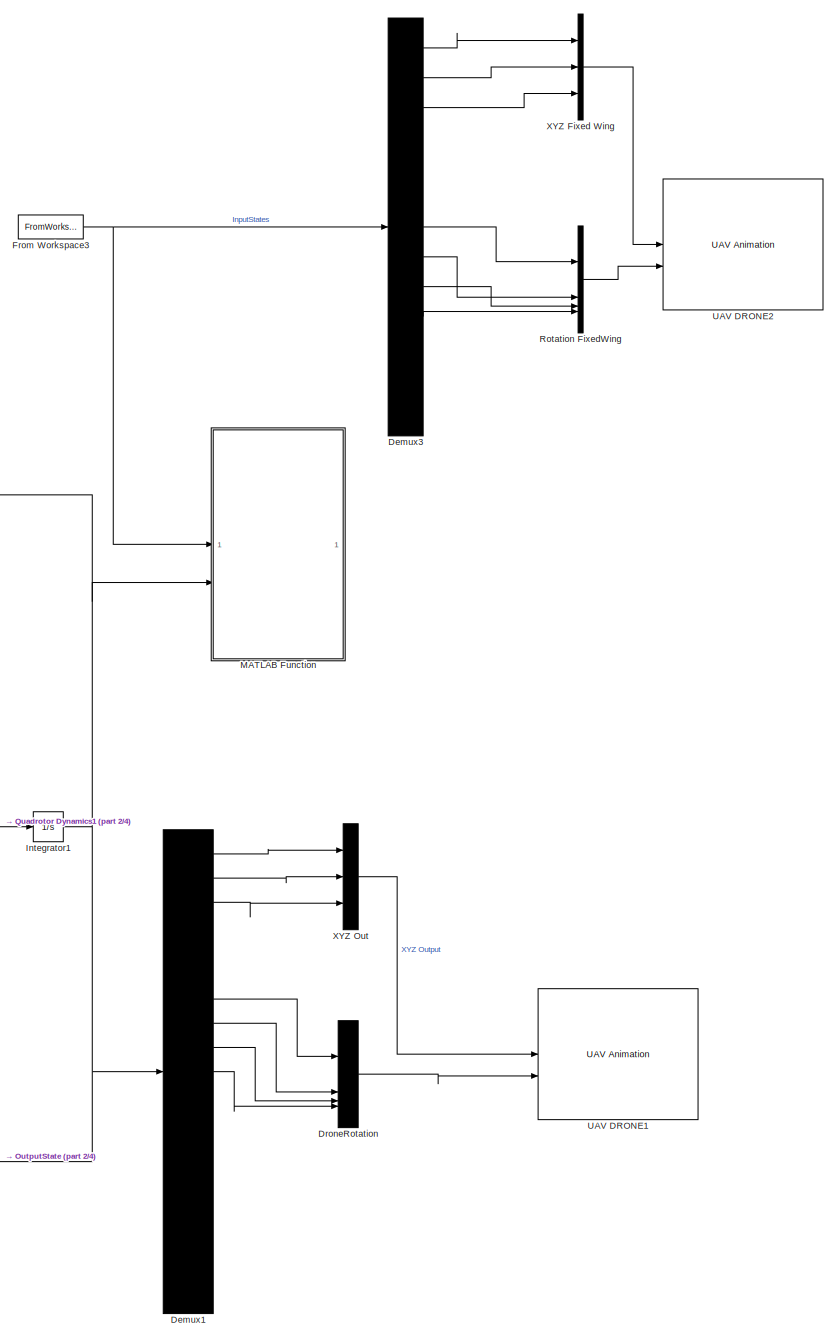
[diagram: root canvas - part 1/4, top right region]
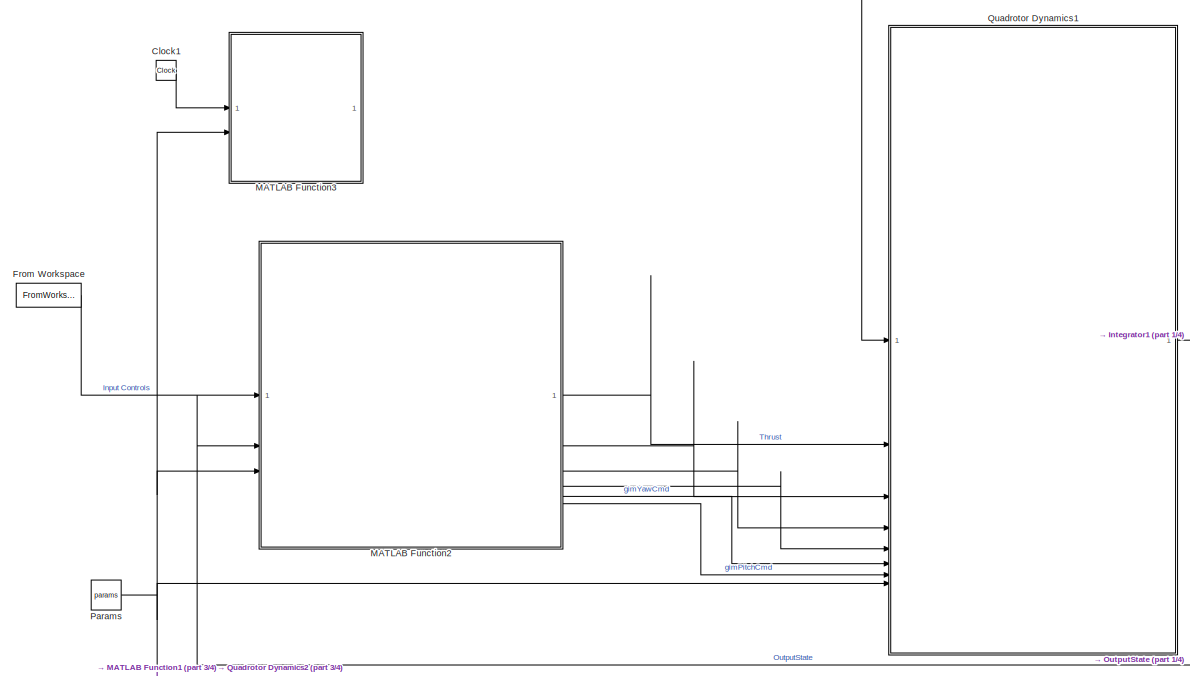
[diagram: root canvas - part 2/4, middle left region]
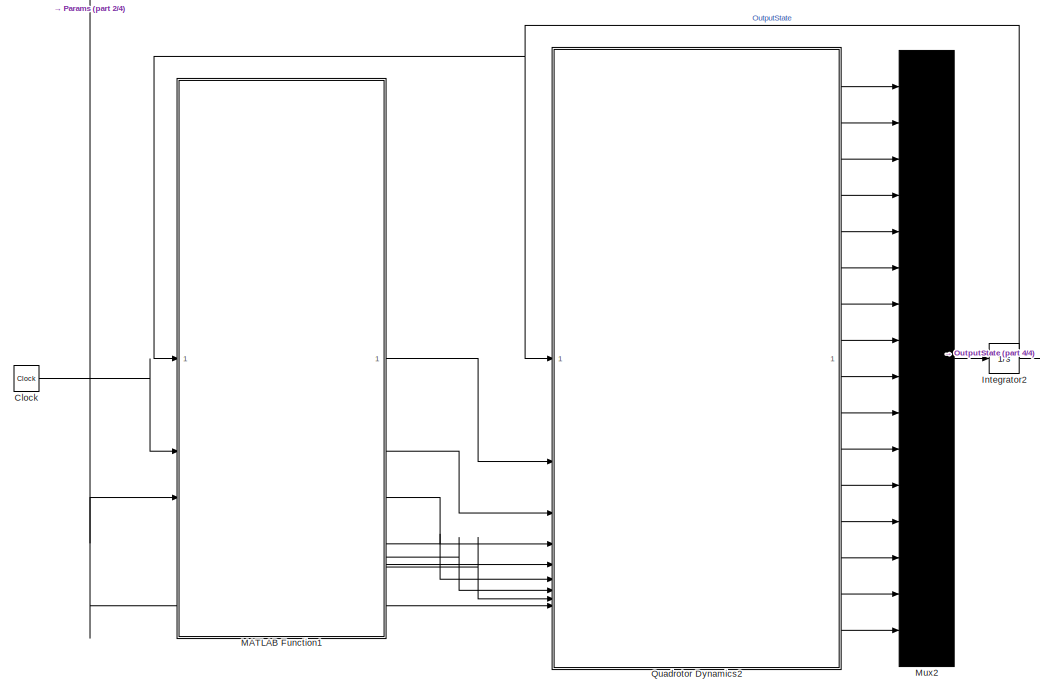
[diagram: root canvas - part 3/4, bottom left region]
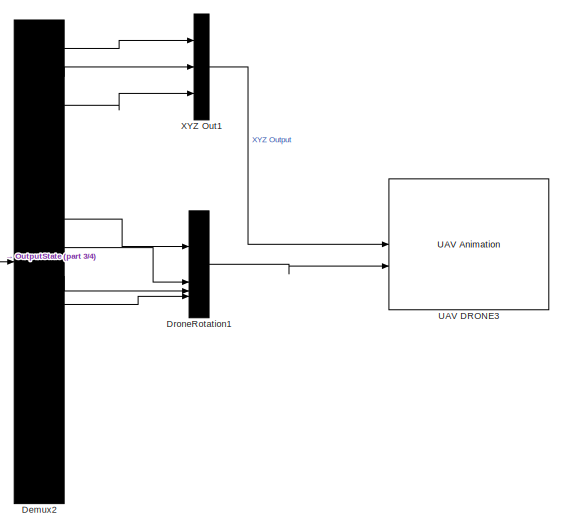
[diagram: root canvas - part 4/4, bottom right region]
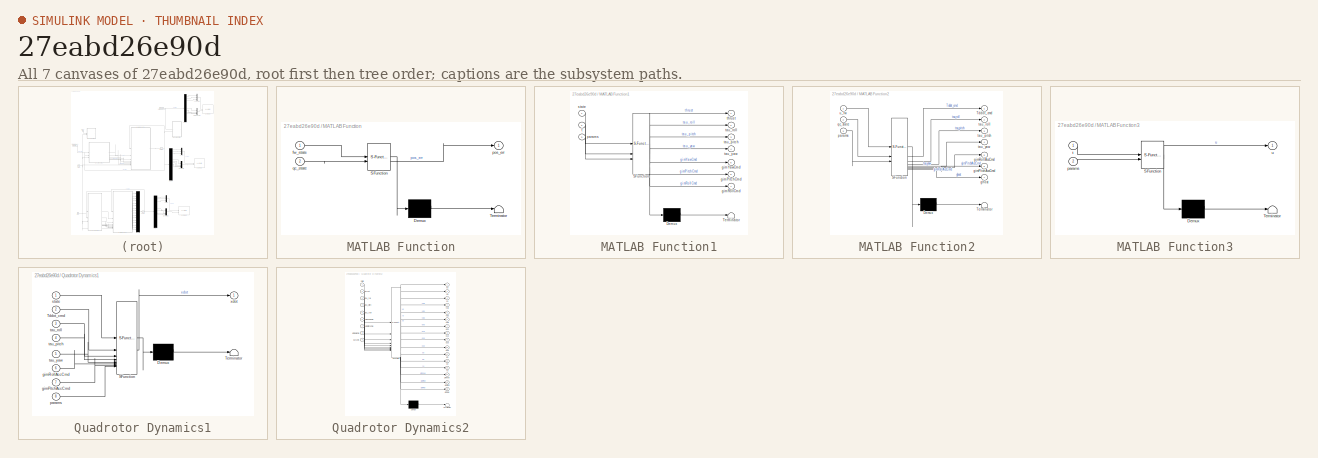
[diagram: thumbnail index - all 7 canvases of the model, root first then tree order]
MODEL slx_27eabd26e90d
KIND model
CONFIG AbsTol = auto
CONFIG EnableMultiTasking = off
CONFIG FixedStep = 0.001
CONFIG MaxStep = auto
CONFIG MinStep = auto
CONFIG RelTol = 1e-3
CONFIG SampleTimeConstraint = Unconstrained
CONFIG SolverName = ode1
CONFIG StartTime = 0.0
CONFIG StopTime = 10
BLOCK [Clock] Clock
  Commented = on
  Decimation = 1
BLOCK [Clock] Clock1
  Decimation = 1
BLOCK [Demux] Demux1
  DisplayOption = none
  Outputs = 19
BLOCK [Demux] Demux2
  Commented = on
  DisplayOption = none
  Outputs = 16
BLOCK [Demux] Demux3
  DisplayOption = none
  Outputs = 13
BLOCK [Mux] DroneRotation
  DisplayOption = signals
BLOCK [Mux] DroneRotation1
  Commented = on
  DisplayOption = signals
BLOCK [FromWorkspace] From Workspace
  SampleTime = params.dt
  VariableName = FW_Controls
BLOCK [FromWorkspace] From Workspace3
  SampleTime = params.dt
  VariableName = FW_States
BLOCK [Integrator] Integrator1
  InitialCondition = initial_qc_state
BLOCK [Integrator] Integrator2
  Commented = on
  InitialCondition = initial_qc_state
BLOCK [SubSystem] MATLAB Function
  ErrorFcn = Stateflow.Translate.translate
  PermitHierarchicalResolution = ExplicitOnly
  SFBlockType = MATLAB Function
  TreatAsAtomicUnit = on
BLOCK [Demux] MATLAB Function/ Demux 
  Outputs = 1
BLOCK [S-Function] MATLAB Function/ SFunction 
  EnableBusSupport = on
  FunctionName = sf_sfun
  PortCounts = [2 2]
  SFcnIsStateOwnerBlock = off
  SFunctionDeploymentMode = off
  Tag = Stateflow S-Function 1
BLOCK [Terminator] MATLAB Function/ Terminator 
BLOCK [Inport] MATLAB Function/fw_state
BLOCK [Outport] MATLAB Function/pos_err
BLOCK [Inport] MATLAB Function/qc_state
  Port = 2
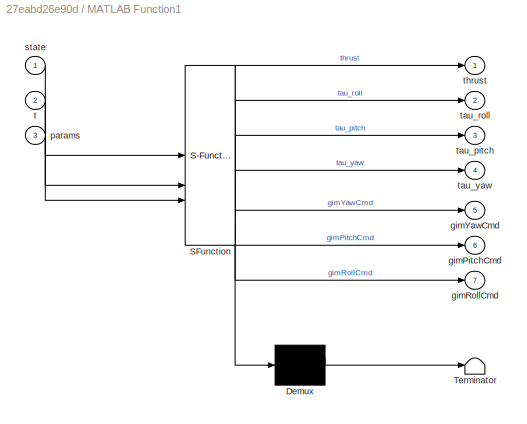
BLOCK [SubSystem] MATLAB Function1
  Commented = on
  ErrorFcn = Stateflow.Translate.translate
  PermitHierarchicalResolution = ExplicitOnly
  SFBlockType = MATLAB Function
  TreatAsAtomicUnit = on
BLOCK [Demux] MATLAB Function1/ Demux 
  Outputs = 1
BLOCK [S-Function] MATLAB Function1/ SFunction 
  EnableBusSupport = on
  FunctionName = sf_sfun
  PortCounts = [3 8]
  SFcnIsStateOwnerBlock = off
  SFunctionDeploymentMode = off
  Tag = Stateflow S-Function 4
BLOCK [Terminator] MATLAB Function1/ Terminator 
BLOCK [Outport] MATLAB Function1/gimPitchCmd
  Port = 6
BLOCK [Outport] MATLAB Function1/gimRollCmd
  Port = 7
BLOCK [Outport] MATLAB Function1/gimYawCmd
  Port = 5
BLOCK [Inport] MATLAB Function1/params
  Port = 3
BLOCK [Inport] MATLAB Function1/state
BLOCK [Inport] MATLAB Function1/t
  Port = 2
BLOCK [Outport] MATLAB Function1/tau_pitch
  Port = 3
BLOCK [Outport] MATLAB Function1/tau_roll
  Port = 2
BLOCK [Outport] MATLAB Function1/tau_yaw
  Port = 4
BLOCK [Outport] MATLAB Function1/thrust
BLOCK [SubSystem] MATLAB Function2
  ErrorFcn = Stateflow.Translate.translate
  PermitHierarchicalResolution = ExplicitOnly
  SFBlockType = MATLAB Function
  SystemSampleTime = params.dt
  TreatAsAtomicUnit = on
BLOCK [Demux] MATLAB Function2/ Demux 
  Outputs = 1
BLOCK [S-Function] MATLAB Function2/ SFunction 
  EnableBusSupport = on
  FunctionName = sf_sfun
  PortCounts = [3 8]
  SFcnIsStateOwnerBlock = off
  SFunctionDeploymentMode = off
  Tag = Stateflow S-Function 10
BLOCK [Terminator] MATLAB Function2/ Terminator 
BLOCK [Outport] MATLAB Function2/Tddot_cmd
BLOCK [Outport] MATLAB Function2/ghost
  Port = 7
BLOCK [Outport] MATLAB Function2/gimPitchAccCmd
  Port = 6
BLOCK [Outport] MATLAB Function2/gimRollAccCmd
  Port = 5
BLOCK [Inport] MATLAB Function2/params
  Port = 3
BLOCK [Inport] MATLAB Function2/qc_state
  Port = 2
BLOCK [Outport] MATLAB Function2/tau_pitch
  Port = 3
BLOCK [Outport] MATLAB Function2/tau_roll
  Port = 2
BLOCK [Outport] MATLAB Function2/tau_yaw
  Port = 4
BLOCK [Inport] MATLAB Function2/u_fw
BLOCK [SubSystem] MATLAB Function3
  ErrorFcn = Stateflow.Translate.translate
  PermitHierarchicalResolution = ExplicitOnly
  SFBlockType = MATLAB Function
  TreatAsAtomicUnit = on
BLOCK [Demux] MATLAB Function3/ Demux 
  Outputs = 1
BLOCK [S-Function] MATLAB Function3/ SFunction 
  EnableBusSupport = on
  FunctionName = sf_sfun
  PortCounts = [2 2]
  SFcnIsStateOwnerBlock = off
  SFunctionDeploymentMode = off
  Tag = Stateflow S-Function 5
BLOCK [Terminator] MATLAB Function3/ Terminator 
BLOCK [Inport] MATLAB Function3/params
  Port = 2
BLOCK [Inport] MATLAB Function3/t
BLOCK [Outport] MATLAB Function3/u
BLOCK [Mux] Mux2
  Commented = on
  DisplayOption = signals
  Inputs = 16
BLOCK [Constant] Params
  OutDataTypeStr = Bus: paramsBus
  Value = params
BLOCK [SubSystem] Quadrotor Dynamics1
  ErrorFcn = Stateflow.Translate.translate
  PermitHierarchicalResolution = ExplicitOnly
  SFBlockType = MATLAB Function
  TreatAsAtomicUnit = on
BLOCK [Demux] Quadrotor Dynamics1/ Demux 
  Outputs = 1
BLOCK [S-Function] Quadrotor Dynamics1/ SFunction 
  EnableBusSupport = on
  FunctionName = sf_sfun
  PortCounts = [8 2]
  SFcnIsStateOwnerBlock = off
  SFunctionDeploymentMode = off
  Tag = Stateflow S-Function 2
BLOCK [Terminator] Quadrotor Dynamics1/ Terminator 
BLOCK [Inport] Quadrotor Dynamics1/Tddot_cmd
  Port = 2
BLOCK [Inport] Quadrotor Dynamics1/gimPitchAccCmd
  Port = 7
BLOCK [Inport] Quadrotor Dynamics1/gimRollAccCmd
  Port = 6
BLOCK [Inport] Quadrotor Dynamics1/params
  Port = 8
BLOCK [Inport] Quadrotor Dynamics1/state
BLOCK [Inport] Quadrotor Dynamics1/tau_pitch
  Port = 4
BLOCK [Inport] Quadrotor Dynamics1/tau_roll
  Port = 3
BLOCK [Inport] Quadrotor Dynamics1/tau_yaw
  Port = 5
BLOCK [Outport] Quadrotor Dynamics1/xdot
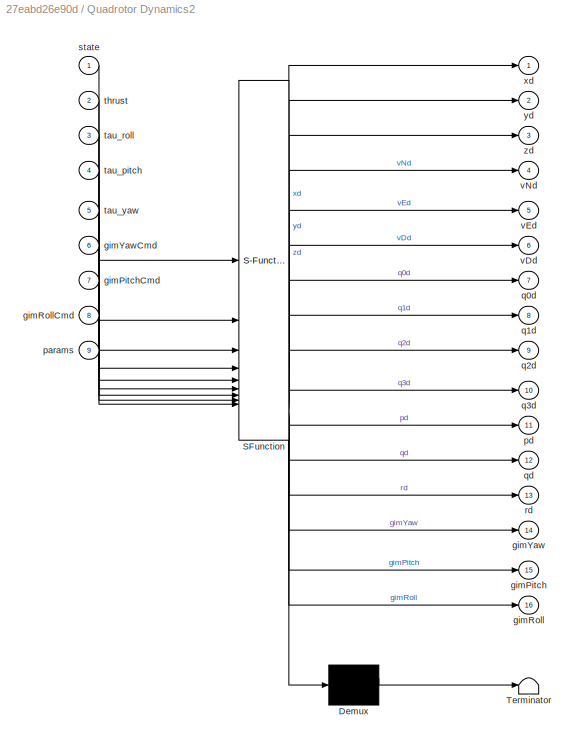
BLOCK [SubSystem] Quadrotor Dynamics2
  Commented = on
  ErrorFcn = Stateflow.Translate.translate
  PermitHierarchicalResolution = ExplicitOnly
  SFBlockType = MATLAB Function
  TreatAsAtomicUnit = on
BLOCK [Demux] Quadrotor Dynamics2/ Demux 
  Outputs = 1
BLOCK [S-Function] Quadrotor Dynamics2/ SFunction 
  EnableBusSupport = on
  FunctionName = sf_sfun
  PortCounts = [9 17]
  SFcnIsStateOwnerBlock = off
  SFunctionDeploymentMode = off
  Tag = Stateflow S-Function 3
BLOCK [Terminator] Quadrotor Dynamics2/ Terminator 
BLOCK [Outport] Quadrotor Dynamics2/gimPitch
  Port = 15
BLOCK [Inport] Quadrotor Dynamics2/gimPitchCmd
  Port = 7
BLOCK [Outport] Quadrotor Dynamics2/gimRoll
  Port = 16
BLOCK [Inport] Quadrotor Dynamics2/gimRollCmd
  Port = 8
BLOCK [Outport] Quadrotor Dynamics2/gimYaw
  Port = 14
BLOCK [Inport] Quadrotor Dynamics2/gimYawCmd
  Port = 6
BLOCK [Inport] Quadrotor Dynamics2/params
  Port = 9
BLOCK [Outport] Quadrotor Dynamics2/pd
  Port = 11
BLOCK [Outport] Quadrotor Dynamics2/q0d
  Port = 7
BLOCK [Outport] Quadrotor Dynamics2/q1d
  Port = 8
BLOCK [Outport] Quadrotor Dynamics2/q2d
  Port = 9
BLOCK [Outport] Quadrotor Dynamics2/q3d
  Port = 10
BLOCK [Outport] Quadrotor Dynamics2/qd
  Port = 12
BLOCK [Outport] Quadrotor Dynamics2/rd
  Port = 13
BLOCK [Inport] Quadrotor Dynamics2/state
BLOCK [Inport] Quadrotor Dynamics2/tau_pitch
  Port = 4
BLOCK [Inport] Quadrotor Dynamics2/tau_roll
  Port = 3
BLOCK [Inport] Quadrotor Dynamics2/tau_yaw
  Port = 5
BLOCK [Inport] Quadrotor Dynamics2/thrust
  Port = 2
BLOCK [Outport] Quadrotor Dynamics2/vDd
  Port = 6
BLOCK [Outport] Quadrotor Dynamics2/vEd
  Port = 5
BLOCK [Outport] Quadrotor Dynamics2/vNd
  Port = 4
BLOCK [Outport] Quadrotor Dynamics2/xd
BLOCK [Outport] Quadrotor Dynamics2/yd
  Port = 2
BLOCK [Outport] Quadrotor Dynamics2/zd
  Port = 3
BLOCK [Mux] Rotation FixedWing
  DisplayOption = bar
BLOCK [Reference] UAV DRONE1  REF=uavutilslib/UAV Animation
  SourceBlock = uavutilslib/UAV Animation
  SourceType = uav.sluav.internal.system.UAVAnimation
BLOCK [Reference] UAV DRONE2  REF=uavutilslib/UAV Animation
  SourceBlock = uavutilslib/UAV Animation
  SourceType = uav.sluav.internal.system.UAVAnimation
BLOCK [Reference] UAV DRONE3  REF=uavutilslib/UAV Animation
  Commented = on
  SourceBlock = uavutilslib/UAV Animation
  SourceType = uav.sluav.internal.system.UAVAnimation
BLOCK [Mux] XYZ Fixed Wing
  DisplayOption = bar
  Inputs = 3
BLOCK [Mux] XYZ Out
  DisplayOption = signals
  Inputs = 3
BLOCK [Mux] XYZ Out1
  Commented = on
  DisplayOption = signals
  Inputs = 3
LINE Clock1:1 -> MATLAB Function3:1
LINE Clock:1 -> MATLAB Function1:2
LINE Demux1:1 -> XYZ Out:1
LINE Demux1:10 -> DroneRotation:4
LINE Demux1:2 -> XYZ Out:2
LINE Demux1:3 -> XYZ Out:3
LINE Demux1:7 -> DroneRotation:1
LINE Demux1:8 -> DroneRotation:2
LINE Demux1:9 -> DroneRotation:3
LINE Demux2:1 -> XYZ Out1:1
LINE Demux2:10 -> DroneRotation1:4
LINE Demux2:2 -> XYZ Out1:2
LINE Demux2:3 -> XYZ Out1:3
LINE Demux2:7 -> DroneRotation1:1
LINE Demux2:8 -> DroneRotation1:2
LINE Demux2:9 -> DroneRotation1:3
LINE Demux3:1 -> XYZ Fixed Wing:1
LINE Demux3:10 -> Rotation FixedWing:4
LINE Demux3:2 -> XYZ Fixed Wing:2
LINE Demux3:3 -> XYZ Fixed Wing:3
LINE Demux3:7 -> Rotation FixedWing:1
LINE Demux3:8 -> Rotation FixedWing:2
LINE Demux3:9 -> Rotation FixedWing:3
LINE DroneRotation1:1 -> UAV DRONE3:2
LINE DroneRotation:1 -> UAV DRONE1:2
NET From Workspace3:1 -> Demux3:1, MATLAB Function:1
LINE From Workspace:1 -> MATLAB Function2:1
NET Integrator1:1 -> Demux1:1, MATLAB Function2:2, MATLAB Function:2, Quadrotor Dynamics1:1
NET Integrator2:1 -> Demux2:1, MATLAB Function1:1, Quadrotor Dynamics2:1
LINE MATLAB Function1:1 -> Quadrotor Dynamics2:2
LINE MATLAB Function1:2 -> Quadrotor Dynamics2:3
LINE MATLAB Function1:3 -> Quadrotor Dynamics2:4
LINE MATLAB Function1:4 -> Quadrotor Dynamics2:5
LINE MATLAB Function1:5 -> Quadrotor Dynamics2:6
LINE MATLAB Function1:6 -> Quadrotor Dynamics2:7
LINE MATLAB Function1:7 -> Quadrotor Dynamics2:8
LINE MATLAB Function2:1 -> Quadrotor Dynamics1:2
LINE MATLAB Function2:2 -> Quadrotor Dynamics1:3
LINE MATLAB Function2:3 -> Quadrotor Dynamics1:4
LINE MATLAB Function2:4 -> Quadrotor Dynamics1:5
LINE MATLAB Function2:5 -> Quadrotor Dynamics1:6
LINE MATLAB Function2:6 -> Quadrotor Dynamics1:7
LINE Mux2:1 -> Integrator2:1
NET Params:1 -> MATLAB Function1:3, MATLAB Function2:3, MATLAB Function3:2, Quadrotor Dynamics1:8, Quadrotor Dynamics2:9
LINE Quadrotor Dynamics1:1 -> Integrator1:1
LINE Quadrotor Dynamics2:1 -> Mux2:1
LINE Quadrotor Dynamics2:10 -> Mux2:10
LINE Quadrotor Dynamics2:11 -> Mux2:11
LINE Quadrotor Dynamics2:12 -> Mux2:12
LINE Quadrotor Dynamics2:13 -> Mux2:13
LINE Quadrotor Dynamics2:14 -> Mux2:14
LINE Quadrotor Dynamics2:15 -> Mux2:15
LINE Quadrotor Dynamics2:16 -> Mux2:16
LINE Quadrotor Dynamics2:2 -> Mux2:2
LINE Quadrotor Dynamics2:3 -> Mux2:3
LINE Quadrotor Dynamics2:4 -> Mux2:4
LINE Quadrotor Dynamics2:5 -> Mux2:5
LINE Quadrotor Dynamics2:6 -> Mux2:6
LINE Quadrotor Dynamics2:7 -> Mux2:7
LINE Quadrotor Dynamics2:8 -> Mux2:8
LINE Quadrotor Dynamics2:9 -> Mux2:9
LINE Rotation FixedWing:1 -> UAV DRONE2:2
LINE XYZ Fixed Wing:1 -> UAV DRONE2:1
LINE XYZ Out1:1 -> UAV DRONE3:1
LINE XYZ Out:1 -> UAV DRONE1:1
note: NET lines group one-source signal fan-out (src -> all destinations, sorted); 1:1 wires keep LINE
CHART Quadrotor Dynamics2 states=1 transitions=1
  STATE_LABEL 'eML_blk_kernel()'
  STATE_LABEL 'SCRIPT:\nfunction [xd,yd,zd, vNd,vEd,vDd, q0d,q1d,q2d,q3d, pd,qd,rd, gimYaw,gimPitch,gimRoll] = ...\n    quadGimbalDynamics(state, thrust, tau_roll, tau_pitch, tau_yaw, ...\n                       gimYawCmd, gimPitchCmd, gimRollCmd, params) %#codegen\n% Quadrotor (NED, quaternion) + ideal 3-axis gimbal (algebraic pass-through)\n% State(13): [x y z vN vE vD q0 q1 q2 q3 p q r]\n% Inputs:\n%   thrust [N] (a...<+2739ch>'
CHART MATLAB Function1 states=1 transitions=1
  STATE_LABEL 'eML_blk_kernel()'
  STATE_LABEL 'SCRIPT:\nfunction [thrust, tau_roll, tau_pitch, tau_yaw, gimYawCmd, gimPitchCmd, gimRollCmd] = ...\n    qc_hold_initial_pose_snp(state, t, params) %#codegen\n% Snappy & precise hold-initial-pose controller (DISCRETE)\n% Frames: NED (Z down). Quat scalar-first [q0 q1 q2 q3], body->NED.\n% No use of "clamp" helpers; explicit min/max saturations only.\n\n% ── Unpack state\nx  = state(1); y  = state(2); z  = ...<+3608ch>'
CHART MATLAB Function3 states=1 transitions=1
  STATE_LABEL 'eML_blk_kernel()'
  STATE_LABEL 'SCRIPT:\nfunction u = control_inputs_bigPulse(t, params)\n% 4x1 [ΔT; ΔE; ΔA; ΔR], pulses at 1.0, 1.2, 1.4, 1.6 s\n% larger amplitudes to push beyond small-angle region\ndt = double(params.dt);\nu  = zeros(4,1);\nang = deg2rad(15);     % 15 deg surfaces\ndT  = 0.30;            % +0.30 throttle\nw   = 10*dt;           % 10-sample pulse width (short & punchy)\nt0  = 1.0;\n\nif t>=t0           && t<t0+w,        ...<+252ch>'
CHART MATLAB Function2 states=1 transitions=1
  STATE_LABEL 'eML_blk_kernel()'
  STATE_LABEL 'SCRIPT:\nfunction [Tddot_cmd, tau_roll, tau_pitch, tau_yaw, gimRollAccCmd, gimPitchAccCmd, ghost] = ...\n    M_block(u_fw, qc_state, params)\n% M_BLOCK  Differential-Flatness / NDI mapper: FW inputs -> QC+g commands\n%\n% Inputs\n%   u_fw      : [thrust, elevator, aileron, rudder] (FW control inputs)\n%   qc_state  : 19x1 QC+g state:\n%               [x y z vN vE vD q0 q1 q2 q3 p q r T nu_T eta theta_g et...<+3608ch>'
CHART MATLAB Function states=1 transitions=1
  STATE_LABEL 'eML_blk_kernel()'
  STATE_LABEL 'SCRIPT:\nfunction pos_err = compare_states(fw_state, qc_state)\n% Position error only (NED): [x; y; z]_fw - [x; y; z]_qc\n% fw_state: [x y z u v w q0 q1 q2 q3 p q r]\n% qc_state: [x y z vN vE vD q0 q1 q2 q3 p q r gimYaw gimPitch gimRoll]\npos_err = fw_state(1:3) - qc_state(1:3);\nend\n'
CHART Quadrotor Dynamics1 states=1 transitions=1
  STATE_LABEL 'eML_blk_kernel()'
  STATE_LABEL "SCRIPT:\nfunction xdot = quadGimbalDynamics(state, Tddot_cmd, tau_roll, tau_pitch, tau_yaw, ...\n                                   gimRollAccCmd, gimPitchAccCmd, params)\n% QUADGIMBALDYNAMICS  6-DoF quadrotor with thrust double-integrator + 2-axis gimbal\n%\n% State (19x1):\n%   [x y z vN vE vD q0 q1 q2 q3 p q r T nu_T eta theta_g eta_dot theta_g_dot]'\n% Inputs:\n%   Tddot_cmd        : commanded T̈  (N/...<+3608ch>"
CHART  states=0 transitions=0
CHART  states=0 transitions=0
CHART  states=0 transitions=0
CHART  states=0 transitions=0
CHART  states=0 transitions=0
CHART  states=0 transitions=0
